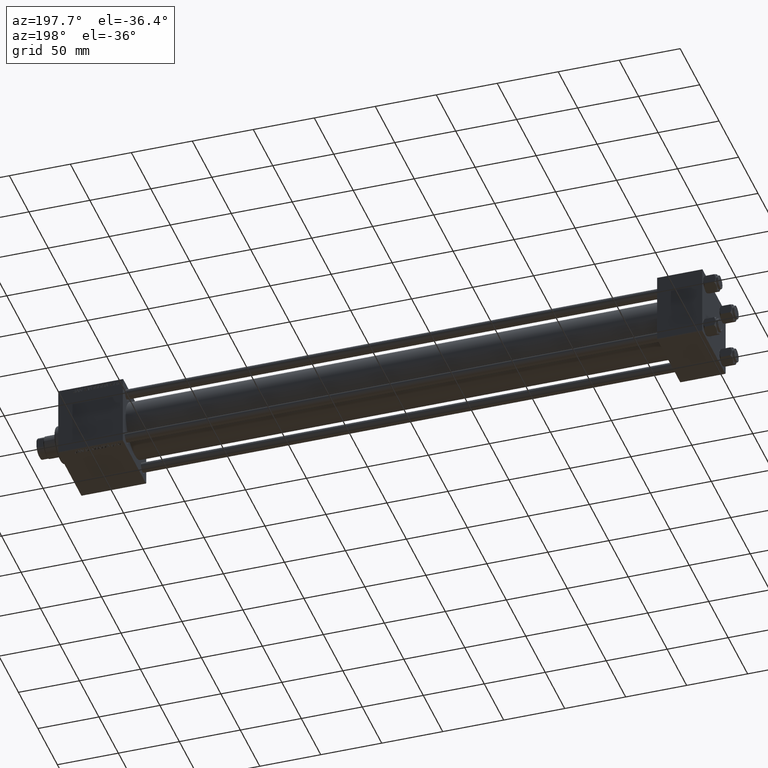
[diagram: clean part render]
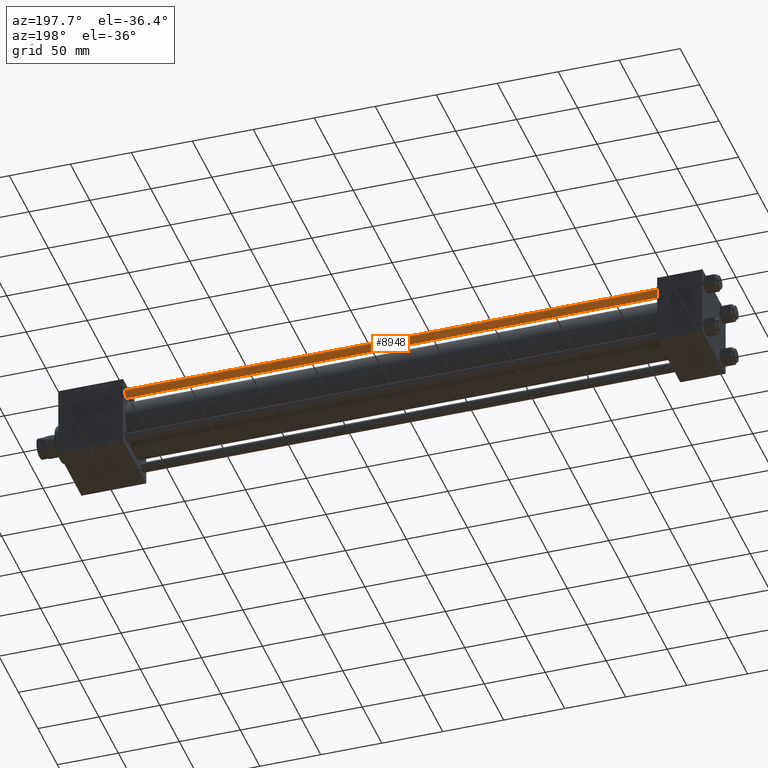
[diagram: same view with one face highlighted and labeled with its STEP entity id]
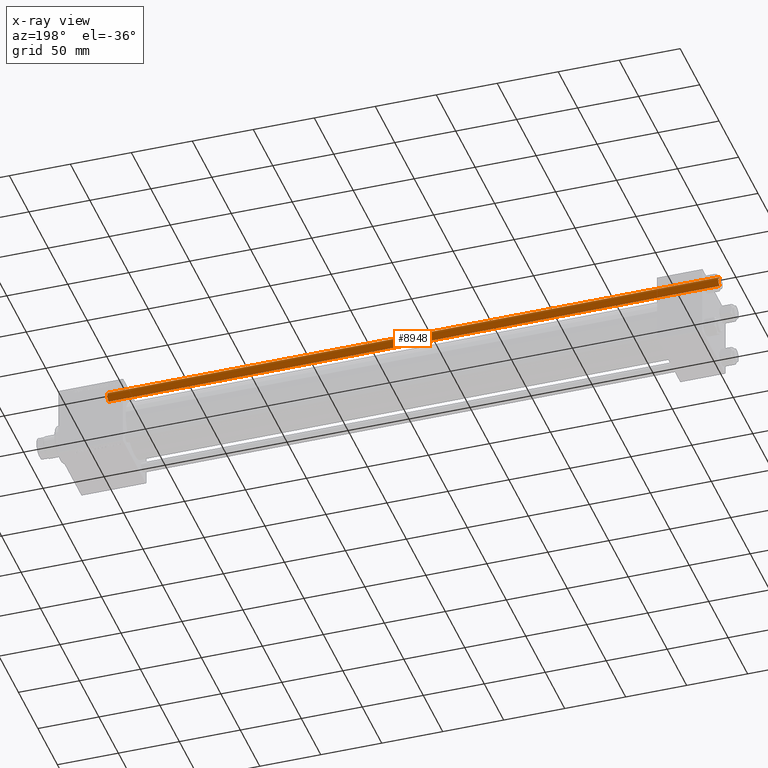
[diagram: x-ray of the same camera — body ghosted, the highlighted face saturated]
A machine part, auxiliary view. The second image highlights one B-rep face of the part: STEP entity #8948.
The next image is the same camera in x-ray: the body ghosted, the highlighted face saturated — about 0% of this face is hidden behind the body in this view.
In plain terms, the highlighted cylindrical surface (edge-blend (fillet) strip) has radius 4 mm, axis along (-1, 0, 0).
Its self-contained STEP definition (entity closure, byte-faithful):
#809 = VERTEX_POINT ( 'NONE', #887 ) ;
#887 = CARTESIAN_POINT ( 'NONE',  ( 4.000000000000000000, 4.898587196589412829E-16, 501.4999999999999432 ) ) ;
#1067 = VERTEX_POINT ( 'NONE', #1841 ) ;
#1841 = CARTESIAN_POINT ( 'NONE',  ( -4.000000000000000000, 0.000000000000000000, 501.4999999999999432 ) ) ;
#2099 = LINE ( 'NONE', #17815, #12625 ) ;
#4367 = AXIS2_PLACEMENT_3D ( 'NONE', #9358, #21030, #4544 ) ;
#4544 = DIRECTION ( 'NONE',  ( -1.000000000000000000, 0.000000000000000000, 0.000000000000000000 ) ) ;
#4598 = DIRECTION ( 'NONE',  ( -0.000000000000000000, -0.000000000000000000, 1.000000000000000000 ) ) ;
#4653 = CARTESIAN_POINT ( 'NONE',  ( 0.000000000000000000, 0.000000000000000000, 501.4999999999999432 ) ) ;
#5300 = FACE_OUTER_BOUND ( 'NONE', #34025, .T. ) ;
#5610 = CARTESIAN_POINT ( 'NONE',  ( 0.000000000000000000, 0.000000000000000000, 0.4999999999999449329 ) ) ;
#8948 = ADVANCED_FACE ( 'NONE', ( #5300 ), #44155, .T. ) ;
#9358 = CARTESIAN_POINT ( 'NONE',  ( 0.000000000000000000, 0.000000000000000000, 502.0000000000000000 ) ) ;
#9594 = AXIS2_PLACEMENT_3D ( 'NONE', #5610, #4598, #23865 ) ;
#11861 = EDGE_CURVE ( 'NONE', #1067, #26550, #21157, .T. ) ;
#12625 = VECTOR ( 'NONE', #13015, 1000.000000000000000 ) ;
#13015 = DIRECTION ( 'NONE',  ( -0.000000000000000000, -0.000000000000000000, -1.000000000000000000 ) ) ;
#16303 = CARTESIAN_POINT ( 'NONE',  ( -4.000000000000000000, 0.000000000000000000, 0.4999999999999449329 ) ) ;
#16377 = CIRCLE ( 'NONE', #24489, 4.000000000000000000 ) ;
#17473 = ORIENTED_EDGE ( 'NONE', *, *, #19754, .T. ) ;
#17815 = CARTESIAN_POINT ( 'NONE',  ( 4.000000000000000000, 4.898587196589412829E-16, 502.0000000000000000 ) ) ;
#19754 = EDGE_CURVE ( 'NONE', #48902, #26550, #36390, .T. ) ;
#20634 = DIRECTION ( 'NONE',  ( 1.000000000000000000, 0.000000000000000000, 0.000000000000000000 ) ) ;
#20961 = ORIENTED_EDGE ( 'NONE', *, *, #27449, .T. ) ;
#21030 = DIRECTION ( 'NONE',  ( -0.000000000000000000, -0.000000000000000000, -1.000000000000000000 ) ) ;
#21157 = LINE ( 'NONE', #49090, #22289 ) ;
#22289 = VECTOR ( 'NONE', #33345, 1000.000000000000000 ) ;
#23865 = DIRECTION ( 'NONE',  ( 1.000000000000000000, 0.000000000000000000, 0.000000000000000000 ) ) ;
#24489 = AXIS2_PLACEMENT_3D ( 'NONE', #4653, #39699, #20634 ) ;
#26550 = VERTEX_POINT ( 'NONE', #16303 ) ;
#27449 = EDGE_CURVE ( 'NONE', #809, #48902, #2099, .T. ) ;
#33230 = ORIENTED_EDGE ( 'NONE', *, *, #11861, .F. ) ;
#33345 = DIRECTION ( 'NONE',  ( -0.000000000000000000, -0.000000000000000000, -1.000000000000000000 ) ) ;
#34025 = EDGE_LOOP ( 'NONE', ( #42153, #20961, #17473, #33230 ) ) ;
#36390 = CIRCLE ( 'NONE', #9594, 4.000000000000000000 ) ;
#36587 = CARTESIAN_POINT ( 'NONE',  ( 4.000000000000000000, 4.898587196589412829E-16, 0.4999999999999449329 ) ) ;
#39699 = DIRECTION ( 'NONE',  ( 0.000000000000000000, 0.000000000000000000, -1.000000000000000000 ) ) ;
#42153 = ORIENTED_EDGE ( 'NONE', *, *, #47013, .T. ) ;
#44155 = CYLINDRICAL_SURFACE ( 'NONE', #4367, 4.000000000000000000 ) ;
#47013 = EDGE_CURVE ( 'NONE', #1067, #809, #16377, .T. ) ;
#48902 = VERTEX_POINT ( 'NONE', #36587 ) ;
#49090 = CARTESIAN_POINT ( 'NONE',  ( -4.000000000000000000, 0.000000000000000000, 502.0000000000000000 ) ) ;